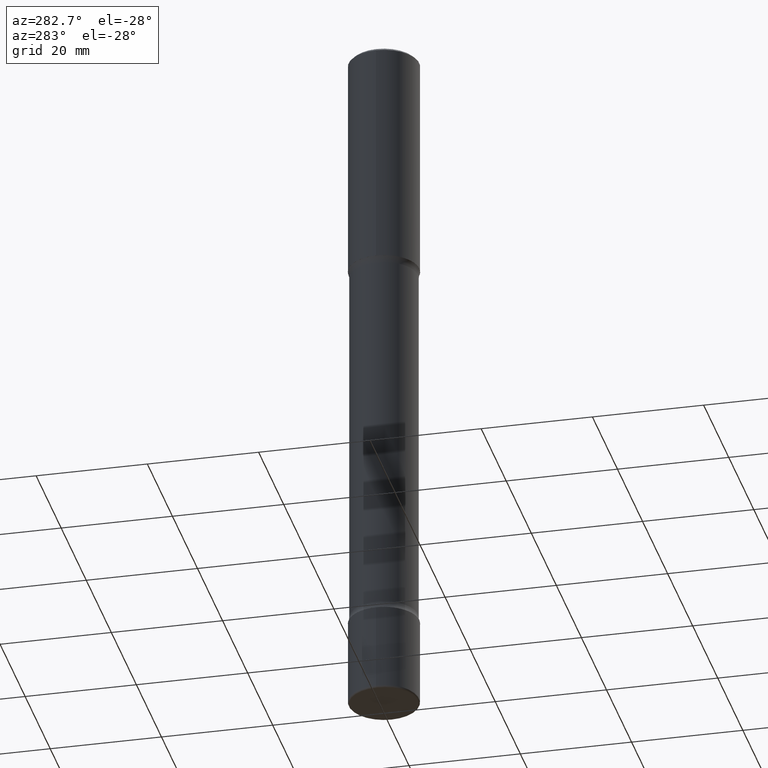
[diagram: clean part render]
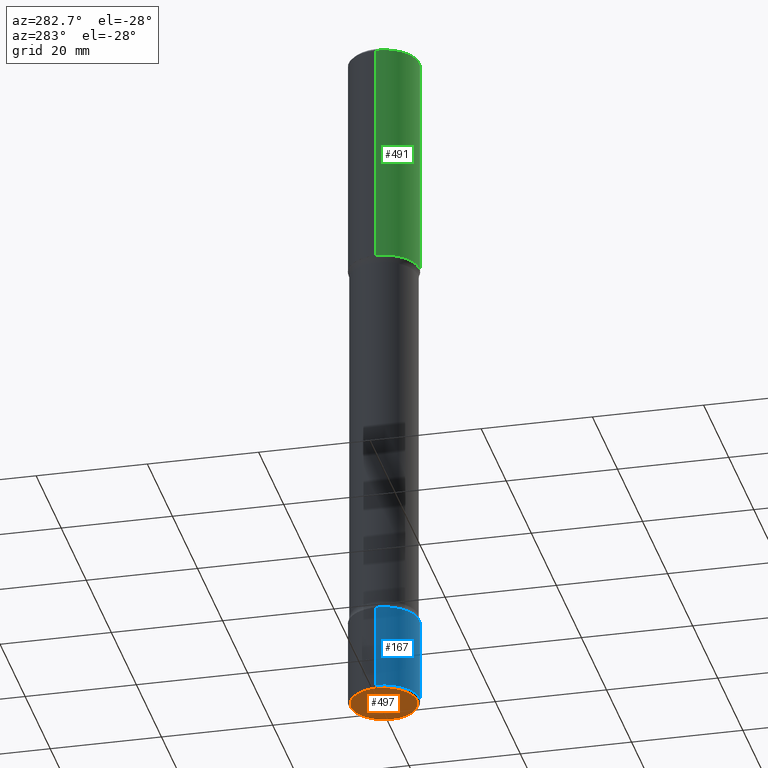
[diagram: same view with three faces highlighted in distinct colors, each labeled with its STEP entity id]
A machine part, auxiliary view with three faces highlighted in distinct colors.
Their STEP definitions:

[orange] entity #497 — the highlighted planar face has unit normal (0, -0, -1).
#25 = EDGE_CURVE ( 'NONE', #350, #401, #343, .T. ) ;
#62 = ORIENTED_EDGE ( 'NONE', *, *, #458, .F. ) ;
#112 = FACE_OUTER_BOUND ( 'NONE', #223, .T. ) ;
#154 = CARTESIAN_POINT ( 'NONE',  ( 1.222734403092568523E-28, -1.745740669421572989E-14, -5.000000000000000000 ) ) ;
#155 = PLANE ( 'NONE',  #255 ) ;
#164 = CARTESIAN_POINT ( 'NONE',  ( 0.2350000000000001255, -1.909840292347200004E-14, -5.000000000000000000 ) ) ;
#187 = CARTESIAN_POINT ( 'NONE',  ( 1.222734403092568523E-28, -1.745740669421572989E-14, -5.000000000000000000 ) ) ;
#201 = DIRECTION ( 'NONE',  ( -2.445468806185136597E-29, 3.491481338843145583E-15, 1.000000000000000000 ) ) ;
#207 = CARTESIAN_POINT ( 'NONE',  ( -0.2350000000000001255, -1.570815444995615772E-14, -5.000000000000000000 ) ) ;
#223 = EDGE_LOOP ( 'NONE', ( #525, #62 ) ) ;
#233 = CIRCLE ( 'NONE', #419, 0.2350000000000001255 ) ;
#255 = AXIS2_PLACEMENT_3D ( 'NONE', #154, #454, #425 ) ;
#343 = CIRCLE ( 'NONE', #466, 0.2350000000000001255 ) ;
#345 = CARTESIAN_POINT ( 'NONE',  ( 1.222734403092568523E-28, -1.745740669421572989E-14, -5.000000000000000000 ) ) ;
#350 = VERTEX_POINT ( 'NONE', #164 ) ;
#374 = DIRECTION ( 'NONE',  ( 1.000000000000000000, -6.982962677686258822E-15, 0.000000000000000000 ) ) ;
#401 = VERTEX_POINT ( 'NONE', #207 ) ;
#419 = AXIS2_PLACEMENT_3D ( 'NONE', #187, #422, #374 ) ;
#422 = DIRECTION ( 'NONE',  ( -2.445468806185136597E-29, 3.491481338843145583E-15, 1.000000000000000000 ) ) ;
#425 = DIRECTION ( 'NONE',  ( -1.000000000000000000, 6.982962677686265922E-15, -4.876176775795935793E-29 ) ) ;
#454 = DIRECTION ( 'NONE',  ( 2.438088387897960049E-29, -3.491481338843145188E-15, -1.000000000000000000 ) ) ;
#458 = EDGE_CURVE ( 'NONE', #401, #350, #233, .T. ) ;
#465 = DIRECTION ( 'NONE',  ( 1.000000000000000000, -6.982962677686258822E-15, 0.000000000000000000 ) ) ;
#466 = AXIS2_PLACEMENT_3D ( 'NONE', #345, #201, #465 ) ;
#497 = ADVANCED_FACE ( 'NONE', ( #112 ), #155, .T. ) ;
#525 = ORIENTED_EDGE ( 'NONE', *, *, #25, .F. ) ;

[blue] entity #167 — the highlighted cylindrical surface (edge-blend (fillet) strip) has radius 6.35 mm, axis along (-0, 0, 1).
#5 = LINE ( 'NONE', #212, #506 ) ;
#21 = CYLINDRICAL_SURFACE ( 'NONE', #301, 0.2500000000000002220 ) ;
#58 = VERTEX_POINT ( 'NONE', #529 ) ;
#80 = DIRECTION ( 'NONE',  ( 1.000000000000000000, -6.982962677686265922E-15, 0.000000000000000000 ) ) ;
#90 = VERTEX_POINT ( 'NONE', #538 ) ;
#98 = EDGE_LOOP ( 'NONE', ( #227, #451, #399, #181 ) ) ;
#115 = AXIS2_PLACEMENT_3D ( 'NONE', #378, #249, #331 ) ;
#118 = CIRCLE ( 'NONE', #438, 0.2500000000000001665 ) ;
#147 = CARTESIAN_POINT ( 'NONE',  ( -0.2500000000000003886, -1.562867763473282642E-14, -4.984999999999999432 ) ) ;
#167 = ADVANCED_FACE ( 'NONE', ( #365 ), #21, .T. ) ;
#181 = ORIENTED_EDGE ( 'NONE', *, *, #380, .F. ) ;
#198 = EDGE_CURVE ( 'NONE', #550, #90, #5, .T. ) ;
#212 = CARTESIAN_POINT ( 'NONE',  ( -0.2500000000000002220, 1.776356839400252042E-15, -1.229733772563727566E-29 ) ) ;
#214 = EDGE_CURVE ( 'NONE', #550, #402, #118, .T. ) ;
#227 = ORIENTED_EDGE ( 'NONE', *, *, #198, .F. ) ;
#228 = CARTESIAN_POINT ( 'NONE',  ( 0.000000000000000000, 0.000000000000000000, 0.000000000000000000 ) ) ;
#248 = DIRECTION ( 'NONE',  ( -2.445468806185136877E-29, 3.491481338843145188E-15, 1.000000000000000000 ) ) ;
#249 = DIRECTION ( 'NONE',  ( -2.445468806185136597E-29, 3.491481338843145583E-15, 1.000000000000000000 ) ) ;
#280 = CARTESIAN_POINT ( 'NONE',  ( 0.2500000000000002220, -1.745740669421568255E-15, 1.219044193948984929E-29 ) ) ;
#294 = VECTOR ( 'NONE', #248, 39.37007874015748143 ) ;
#301 = AXIS2_PLACEMENT_3D ( 'NONE', #228, #410, #549 ) ;
#331 = DIRECTION ( 'NONE',  ( 1.000000000000000000, -6.982962677686264344E-15, 0.000000000000000000 ) ) ;
#354 = CIRCLE ( 'NONE', #115, 0.2500000000000002220 ) ;
#365 = FACE_OUTER_BOUND ( 'NONE', #98, .T. ) ;
#378 = CARTESIAN_POINT ( 'NONE',  ( 1.069892602705997261E-28, -1.527523085743876365E-14, -4.375000000000000000 ) ) ;
#380 = EDGE_CURVE ( 'NONE', #90, #58, #354, .T. ) ;
#389 = DIRECTION ( 'NONE',  ( -2.445468806185136877E-29, 3.491481338843145188E-15, 1.000000000000000000 ) ) ;
#399 = ORIENTED_EDGE ( 'NONE', *, *, #508, .T. ) ;
#402 = VERTEX_POINT ( 'NONE', #520 ) ;
#410 = DIRECTION ( 'NONE',  ( -2.445468806185136597E-29, 3.491481338843145583E-15, 1.000000000000000000 ) ) ;
#415 = LINE ( 'NONE', #280, #294 ) ;
#438 = AXIS2_PLACEMENT_3D ( 'NONE', #471, #469, #80 ) ;
#451 = ORIENTED_EDGE ( 'NONE', *, *, #214, .T. ) ;
#469 = DIRECTION ( 'NONE',  ( -2.445468806185136597E-29, 3.491481338843145583E-15, 1.000000000000000000 ) ) ;
#471 = CARTESIAN_POINT ( 'NONE',  ( 1.219066199883290567E-28, -1.740503447413308005E-14, -4.984999999999999432 ) ) ;
#506 = VECTOR ( 'NONE', #389, 39.37007874015748143 ) ;
#508 = EDGE_CURVE ( 'NONE', #402, #58, #415, .T. ) ;
#520 = CARTESIAN_POINT ( 'NONE',  ( 0.2500000000000003886, -1.915077514355464672E-14, -4.984999999999999432 ) ) ;
#529 = CARTESIAN_POINT ( 'NONE',  ( 0.2500000000000002220, -1.702097152686033033E-14, -4.375000000000000000 ) ) ;
#538 = CARTESIAN_POINT ( 'NONE',  ( -0.2500000000000002220, -1.456377582638566980E-14, -4.375000000000000000 ) ) ;
#549 = DIRECTION ( 'NONE',  ( 1.000000000000000000, -6.982962677686266711E-15, 4.876176775795935232E-29 ) ) ;
#550 = VERTEX_POINT ( 'NONE', #147 ) ;

[green] entity #491 — the highlighted cylindrical surface (edge-blend (fillet) strip) has radius 6.35 mm, axis along (-0, 0, 1).
#13 = DIRECTION ( 'NONE',  ( -2.445468806185136597E-29, 3.491481338843145583E-15, 1.000000000000000000 ) ) ;
#18 = VERTEX_POINT ( 'NONE', #258 ) ;
#35 = EDGE_CURVE ( 'NONE', #103, #347, #500, .T. ) ;
#38 = CARTESIAN_POINT ( 'NONE',  ( 0.000000000000000000, 0.000000000000000000, 0.000000000000000000 ) ) ;
#48 = CARTESIAN_POINT ( 'NONE',  ( 4.890937612370285420E-31, -6.982962677686308865E-17, -0.02000000000000005246 ) ) ;
#66 = EDGE_CURVE ( 'NONE', #414, #347, #395, .T. ) ;
#91 = EDGE_CURVE ( 'NONE', #18, #103, #141, .T. ) ;
#101 = CARTESIAN_POINT ( 'NONE',  ( -0.2500000000000002220, 1.776356839400252042E-15, -1.229733772563727566E-29 ) ) ;
#103 = VERTEX_POINT ( 'NONE', #317 ) ;
#117 = DIRECTION ( 'NONE',  ( 1.000000000000000000, -6.982962677686267499E-15, 4.876176775795936353E-29 ) ) ;
#129 = CARTESIAN_POINT ( 'NONE',  ( 0.2500000000000002220, -1.745740669421568453E-15, 1.219044193948985209E-29 ) ) ;
#131 = DIRECTION ( 'NONE',  ( 1.000000000000000000, -6.982962677686269077E-15, 0.000000000000000000 ) ) ;
#141 = LINE ( 'NONE', #101, #153 ) ;
#148 = ORIENTED_EDGE ( 'NONE', *, *, #35, .F. ) ;
#153 = VECTOR ( 'NONE', #446, 39.37007874015748143 ) ;
#177 = VECTOR ( 'NONE', #484, 39.37007874015748143 ) ;
#190 = EDGE_LOOP ( 'NONE', ( #409, #459, #279, #148 ) ) ;
#216 = CARTESIAN_POINT ( 'NONE',  ( 0.2500000000000001110, -1.784954126219746583E-15, -0.02000000000000005246 ) ) ;
#247 = FACE_OUTER_BOUND ( 'NONE', #190, .T. ) ;
#258 = CARTESIAN_POINT ( 'NONE',  ( -0.2500000000000003331, -1.095386561798233741E-15, -1.625000000000000000 ) ) ;
#279 = ORIENTED_EDGE ( 'NONE', *, *, #66, .T. ) ;
#284 = CIRCLE ( 'NONE', #539, 0.2500000000000003331 ) ;
#317 = CARTESIAN_POINT ( 'NONE',  ( -0.2500000000000001110, 1.675911042644704563E-15, -0.02000000000000005246 ) ) ;
#323 = DIRECTION ( 'NONE',  ( -2.445468806185136597E-29, 3.491481338843145583E-15, 1.000000000000000000 ) ) ;
#338 = EDGE_CURVE ( 'NONE', #18, #414, #284, .T. ) ;
#339 = DIRECTION ( 'NONE',  ( -2.445468806185136597E-29, 3.491481338843145583E-15, 1.000000000000000000 ) ) ;
#347 = VERTEX_POINT ( 'NONE', #216 ) ;
#391 = CARTESIAN_POINT ( 'NONE',  ( 3.973886810050846970E-29, -5.673657175620112213E-15, -1.625000000000000000 ) ) ;
#395 = LINE ( 'NONE', #129, #177 ) ;
#409 = ORIENTED_EDGE ( 'NONE', *, *, #91, .F. ) ;
#414 = VERTEX_POINT ( 'NONE', #462 ) ;
#446 = DIRECTION ( 'NONE',  ( -2.445468806185136877E-29, 3.491481338843145188E-15, 1.000000000000000000 ) ) ;
#459 = ORIENTED_EDGE ( 'NONE', *, *, #338, .T. ) ;
#462 = CARTESIAN_POINT ( 'NONE',  ( 0.2500000000000003331, -7.419397845041682046E-15, -1.625000000000000000 ) ) ;
#484 = DIRECTION ( 'NONE',  ( -2.445468806185136877E-29, 3.491481338843145188E-15, 1.000000000000000000 ) ) ;
#491 = ADVANCED_FACE ( 'NONE', ( #247 ), #503, .T. ) ;
#500 = CIRCLE ( 'NONE', #545, 0.2500000000000001110 ) ;
#502 = AXIS2_PLACEMENT_3D ( 'NONE', #38, #323, #117 ) ;
#503 = CYLINDRICAL_SURFACE ( 'NONE', #502, 0.2500000000000002220 ) ;
#523 = DIRECTION ( 'NONE',  ( 1.000000000000000000, -6.982962677686267499E-15, 0.000000000000000000 ) ) ;
#539 = AXIS2_PLACEMENT_3D ( 'NONE', #391, #13, #131 ) ;
#545 = AXIS2_PLACEMENT_3D ( 'NONE', #48, #339, #523 ) ;